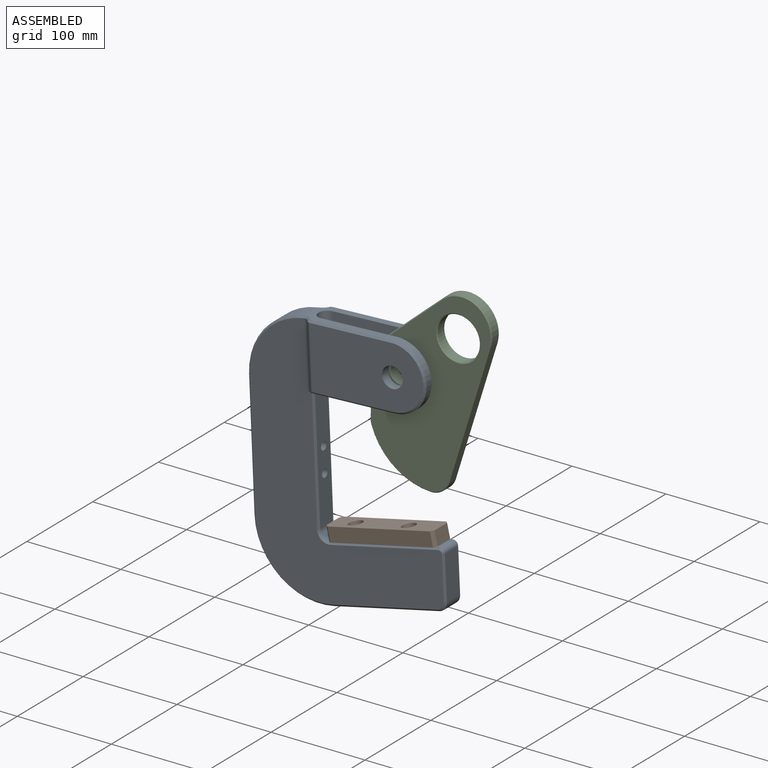
[diagram: assembled view]
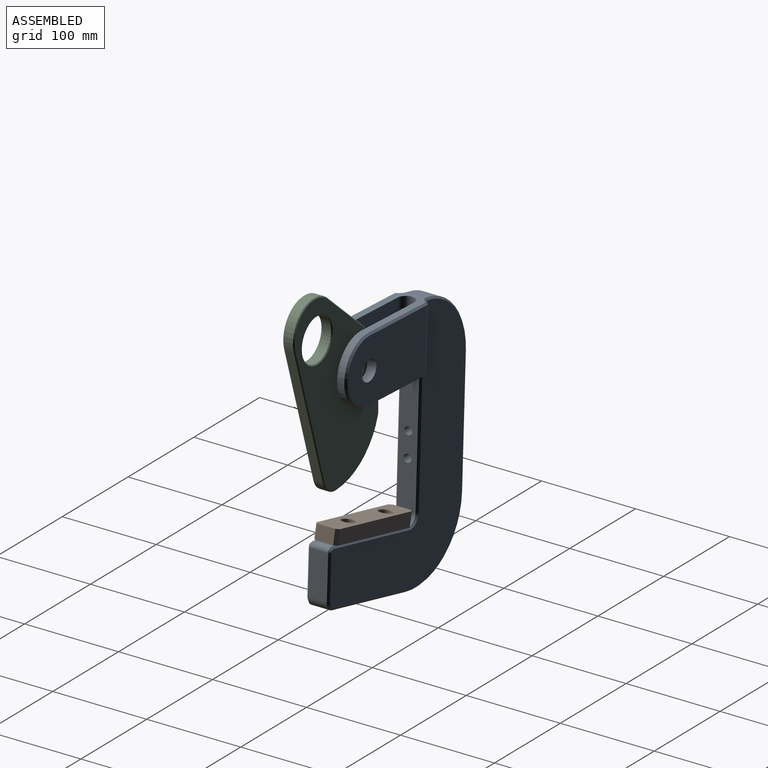
[diagram: assembled view, second angle]
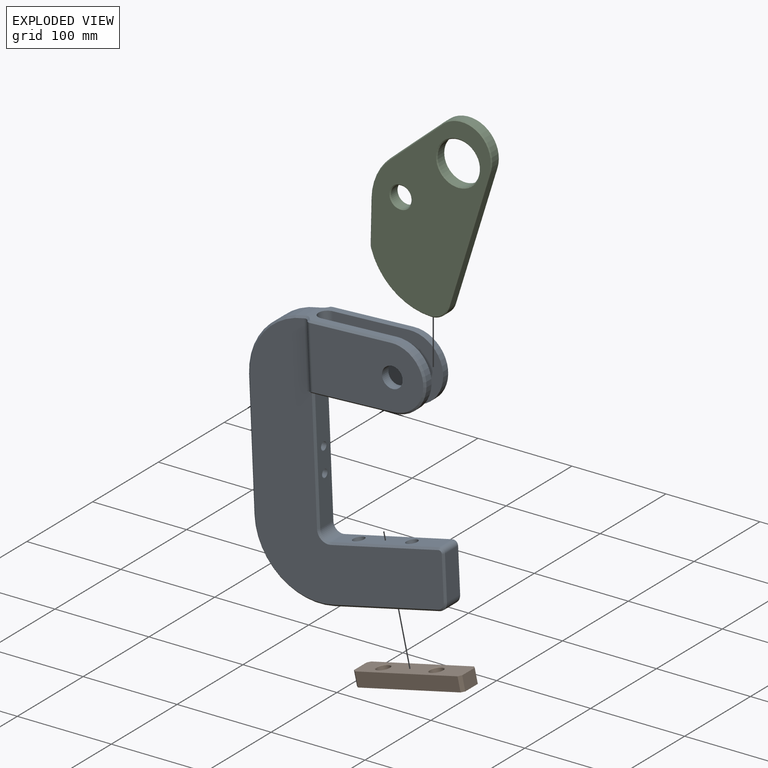
[diagram: exploded view]
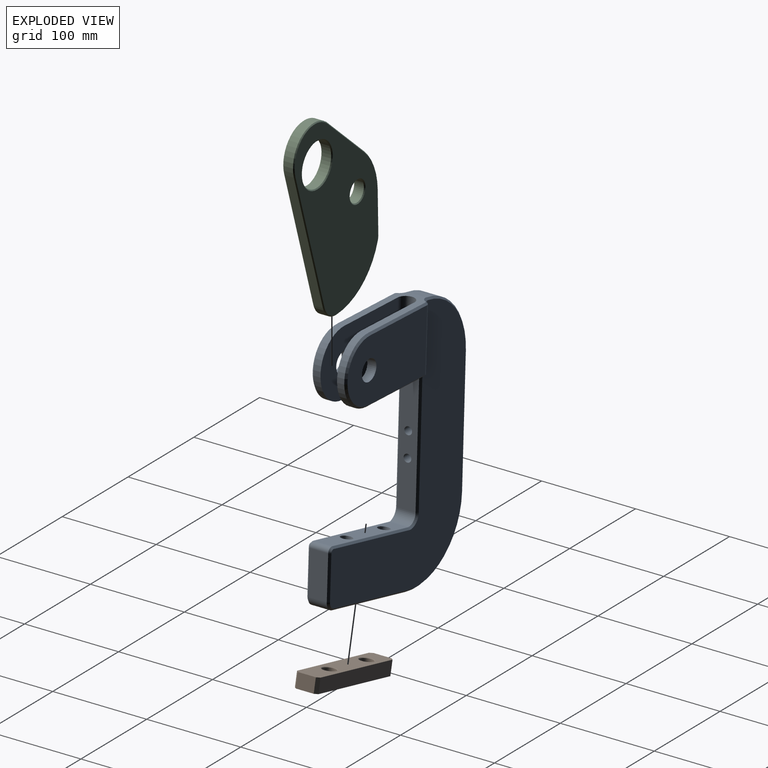
[diagram: exploded view, second angle]
ASSEMBLY  parts=3 mates=2
PART A: 141 faces, bbox 214.6x41x281.7 mm
  f0: cylinder r=4mm len=8.11mm, axis (1,0,0.04), area 45.1mm2, adj f30,f133,f138,f139,f140
  f1: cylinder r=4mm len=8.02mm, axis (1,0,0.04), area 4.5mm2, adj f2,f71,f139,f140
  f2: cylinder r=4mm len=8.05mm, axis (1,0,0.04), area 10mm2, adj f1,f3,f139,f140
  f3: cylinder r=4mm len=8.05mm, axis (1,0,0.04), area 10mm2, adj f2,f4,f139,f140
  f4: cylinder r=4mm len=8.05mm, axis (1,0,0.04), area 10mm2, adj f3,f5,f139,f140
  f5: cylinder r=4mm len=8.05mm, axis (1,0,0.04), area 10.1mm2, adj f4,f6,f139,f140
  f6: cylinder r=4mm len=8.05mm, axis (1,0,0.04), area 9.8mm2, adj f5,f7,f139,f140
  f7: cylinder r=4mm len=8.05mm, axis (1,0,0.04), area 10mm2, adj f6,f8,f139,f140
  f8: cylinder r=4mm len=8.05mm, axis (1,0,0.04), area 9.9mm2, adj f7,f9,f139,f140
  f9: cylinder r=4mm len=8.05mm, axis (1,0,0.04), area 10.1mm2, adj f8,f10,f139,f140
  f10: cylinder r=4mm len=8.05mm, axis (1,0,0.04), area 10mm2, adj f9,f11,f139,f140
  f11: cylinder r=4mm len=8.05mm, axis (1,0,0.04), area 10.1mm2, adj f10,f12,f139,f140
  f12: cylinder r=4mm len=8.05mm, axis (1,0,0.04), area 10.1mm2, adj f11,f13,f139,f140
  f13: cylinder r=4mm len=8.05mm, axis (1,0,0.04), area 10mm2, adj f12,f14,f139,f140
  f14: cylinder r=4mm len=8.05mm, axis (1,0,0.04), area 10mm2, adj f13,f15,f139,f140
  f15: cylinder r=4mm len=8.05mm, axis (1,0,0.04), area 10mm2, adj f14,f16,f139,f140
  f16: cylinder r=4mm len=8.05mm, axis (1,0,0.04), area 9.9mm2, adj f15,f17,f139,f140
  f17: cylinder r=4mm len=8.05mm, axis (1,0,0.04), area 10.1mm2, adj f16,f18,f139,f140
  f18: cylinder r=4mm len=8.05mm, axis (1,0,0.04), area 10mm2, adj f17,f19,f139,f140
  f19: cylinder r=4mm len=8.05mm, axis (1,0,0.04), area 10.1mm2, adj f18,f20,f139,f140
  f20: cylinder r=4mm len=8.05mm, axis (1,0,0.04), area 10mm2, adj f19,f21,f139,f140
  f21: cylinder r=4mm len=8.05mm, axis (1,0,0.04), area 10.1mm2, adj f20,f22,f139,f140
  f22: cylinder r=4mm len=8.05mm, axis (1,0,0.04), area 10mm2, adj f21,f23,f139,f140
  f23: cylinder r=4mm len=8.05mm, axis (1,0,0.04), area 10mm2, adj f22,f24,f139,f140
  f24: cylinder r=4mm len=8.05mm, axis (1,0,0.04), area 10.1mm2, adj f23,f25,f139,f140
  f25: cylinder r=4mm len=8.05mm, axis (1,0,0.04), area 10.2mm2, adj f24,f26,f139,f140
  f26: cylinder r=4mm len=8.05mm, axis (1,0,0.04), area 10mm2, adj f25,f27,f139,f140
  f27: cylinder r=4mm len=8.05mm, axis (1,0,0.04), area 10mm2, adj f26,f28,f139,f140
  f28: cylinder r=4mm len=8.05mm, axis (1,0,0.04), area 10.1mm2, adj f27,f29,f139,f140
  f29: cylinder r=4mm len=8.05mm, axis (1,0,0.04), area 10.1mm2, adj f28,f30,f139,f140
  f30: cylinder r=4mm len=8.05mm, axis (1,0,0.04), area 10mm2, adj f0,f29,f139,f140
  f31: cylinder r=4mm len=8.11mm, axis (1,0,0.04), area 45.1mm2, adj f61,f134,f135,f136,f137
  f32: cylinder r=4mm len=8.02mm, axis (1,0,0.04), area 4.5mm2, adj f33,f71,f136,f137
  f33: cylinder r=4mm len=8.05mm, axis (1,0,0.04), area 10.2mm2, adj f32,f34,f136,f137
  f34: cylinder r=4mm len=8.05mm, axis (1,0,0.04), area 10.1mm2, adj f33,f35,f136,f137
  f35: cylinder r=4mm len=8.05mm, axis (1,0,0.04), area 9.7mm2, adj f34,f36,f136,f137
  f36: cylinder r=4mm len=8.05mm, axis (1,0,0.04), area 10.1mm2, adj f35,f37,f136,f137
  f37: cylinder r=4mm len=8.05mm, axis (1,0,0.04), area 10mm2, adj f36,f38,f136,f137
  f38: cylinder r=4mm len=8.05mm, axis (1,0,0.04), area 10.1mm2, adj f37,f39,f136,f137
  f39: cylinder r=4mm len=8.05mm, axis (1,0,0.04), area 10.1mm2, adj f38,f40,f136,f137
  f40: cylinder r=4mm len=8.05mm, axis (1,0,0.04), area 10mm2, adj f39,f41,f136,f137
  f41: cylinder r=4mm len=8.05mm, axis (1,0,0.04), area 10.1mm2, adj f40,f42,f136,f137
  f42: cylinder r=4mm len=8.05mm, axis (1,0,0.04), area 10.1mm2, adj f41,f43,f136,f137
  f43: cylinder r=4mm len=8.05mm, axis (1,0,0.04), area 10mm2, adj f42,f44,f136,f137
  f44: cylinder r=4mm len=8.05mm, axis (1,0,0.04), area 10.2mm2, adj f43,f45,f136,f137
  f45: cylinder r=4mm len=8.05mm, axis (1,0,0.04), area 9.8mm2, adj f44,f46,f136,f137
  f46: cylinder r=4mm len=8.05mm, axis (1,0,0.04), area 9.8mm2, adj f45,f47,f136,f137
  f47: cylinder r=4mm len=8.05mm, axis (1,0,0.04), area 10mm2, adj f46,f48,f136,f137
  f48: cylinder r=4mm len=8.05mm, axis (1,0,0.04), area 10mm2, adj f47,f49,f136,f137
  f49: cylinder r=4mm len=8.05mm, axis (1,0,0.04), area 10mm2, adj f48,f50,f136,f137
  f50: cylinder r=4mm len=8.05mm, axis (1,0,0.04), area 10.1mm2, adj f49,f51,f136,f137
  f51: cylinder r=4mm len=8.05mm, axis (1,0,0.04), area 10mm2, adj f50,f52,f136,f137
  f52: cylinder r=4mm len=8.05mm, axis (1,0,0.04), area 10.1mm2, adj f51,f53,f136,f137
  f53: cylinder r=4mm len=8.05mm, axis (1,0,0.04), area 10mm2, adj f52,f54,f136,f137
  f54: cylinder r=4mm len=8.05mm, axis (1,0,0.04), area 10mm2, adj f53,f55,f136,f137
  f55: cylinder r=4mm len=8.05mm, axis (1,0,0.04), area 10.1mm2, adj f54,f56,f136,f137
  f56: cylinder r=4mm len=8.05mm, axis (1,0,0.04), area 10.2mm2, adj f55,f57,f136,f137
  f57: cylinder r=4mm len=8.05mm, axis (1,0,0.04), area 10mm2, adj f56,f58,f136,f137
  f58: cylinder r=4mm len=8.05mm, axis (1,0,0.04), area 10mm2, adj f57,f59,f136,f137
  f59: cylinder r=4mm len=8.05mm, axis (1,0,0.04), area 10mm2, adj f58,f60,f136,f137
  f60: cylinder r=4mm len=8.05mm, axis (1,0,0.04), area 10.1mm2, adj f59,f61,f136,f137
  f61: cylinder r=4mm len=8.05mm, axis (1,0,0.04), area 10.1mm2, adj f31,f60,f136,f137
  f62: plane 120.77x69.96mm, normal (0,-1,0), area 7028.6mm2, adj f81,f92,f111,f112,f113
  f63: plane 120.77x69.96mm, normal (0,1,0), area 7028.6mm2, adj f77,f93,f128,f129,f130
  f64: plane 111.71x24.99mm, normal (0.22,0,-0.98), area 2063.2mm2, adj f66,f70,f104,f121,f131,f132
  f65: cylinder r=10mm len=20mm, axis (0,1,0), area 348.6mm2, adj f69,f71,f99,f116
  f66: cylinder r=70mm len=85.21mm, axis (0,1,0), area 2442.6mm2, adj f64,f73,f105,f122
  f67: plane 46.52x20mm, normal (1,0,0.05), area 931.3mm2, adj f68,f70,f102,f119
  f68: cylinder r=5mm len=20mm, axis (0,1,0), area 174.5mm2, adj f67,f69,f101,f118
  f69: plane 114.48x25.6mm, normal (-0.22,0,0.98), area 2119.9mm2, adj f65,f68,f100,f117,f131,f132
  f70: cylinder r=10mm len=20mm, axis (0,1,0), area 279.4mm2, adj f64,f67,f103,f120
  f71: plane 122.14x20.28mm, normal (1,0,0.04), area 2330.5mm2, adj f1,f32,f65,f89,f98,f114,f115,f136
  f72: cylinder r=70mm len=73.17mm, axis (0,1,0), area 2223mm2, adj f73,f76,f80,f107,f108,f124,f125
  f73: plane 133.6x20mm, normal (-1,0,-0.04), area 2674.5mm2, adj f66,f72,f106,f123
  f74: plane 79.93x7.68mm, normal (0.05,0,-1), area 614.2mm2, adj f75,f82,f87,f130
  f75: cylinder r=35mm len=69.96mm, axis (0,1,0), area 844mm2, adj f74,f80,f82,f129
  f76: plane 89.92x16.5mm, normal (-0.05,0,1), area 703.9mm2, adj f72,f79,f83,f84,f109,f110,f111
  f77: cylinder r=11mm len=22mm, axis (0,1,0), area 668.7mm2, adj f63,f82
  f78: plane 79.93x7.68mm, normal (0.05,0,-1), area 614.2mm2, adj f79,f83,f88,f113
  f79: cylinder r=35mm len=69.96mm, axis (0,1,0), area 844mm2, adj f76,f78,f83,f112
  f80: plane 89.92x16.5mm, normal (-0.05,0,1), area 703.9mm2, adj f72,f75,f82,f84,f126,f127,f128
  f81: cylinder r=11mm len=22mm, axis (0,1,0), area 668.7mm2, adj f62,f83
  f82: plane 117.73x73.67mm, normal (0,-1,0), area 7227.7mm2, adj f74,f75,f77,f80,f84,f87
  f83: plane 117.73x73.67mm, normal (0,1,0), area 7227.7mm2, adj f76,f78,f79,f81,f84,f88
  f84: cylinder r=8.82mm len=70.28mm, axis (-0.05,0,1), area 1932.8mm2, adj f76,f80,f82,f83,f87,f88,f95
  f85: plane 268.86x206.57mm, normal (0,-1,0), area 23071.6mm2, adj f90,f94,f97,f98,f99,f100,f101,f102
  f86: plane 268.86x206.57mm, normal (0,1,0), area 23081.8mm2, adj f87,f91,f114,f115,f116,f117,f118,f119
  f87: plane 17.05x11.31mm, normal (0,0,-1), area 97.3mm2, adj f74,f82,f84,f86,f91,f93,f95,f114
  f88: plane 12.13x11.29mm, normal (0,0,-1), area 85.6mm2, adj f78,f83,f84,f90,f92,f94,f95,f96
  f89: plane 20.04x8.37mm, normal (1,0,0.05), area 167.5mm2, adj f71,f95,f97,f114
  f90: cylinder r=7mm len=69.43mm, axis (0.05,0,-1), area 520.5mm2, adj f85,f88,f92,f94,f108,f109
  f91: cylinder r=7mm len=67.72mm, axis (0.05,0,-1), area 515mm2, adj f86,f87,f93,f125,f126
  f92: cylinder r=5mm len=67.67mm, axis (0.05,0,-1), area 366.5mm2, adj f62,f88,f90,f110,f113
  f93: cylinder r=5mm len=67.67mm, axis (0.05,0,-1), area 366.5mm2, adj f63,f87,f91,f127,f130
  f94: plane 5.97x2.98mm, normal (0,-0.71,-0.71), area 4.7mm2, adj f85,f88,f90,f96
  f95: plane 24.02x6.09mm, normal (0.72,0,-0.69), area 32.3mm2, adj f84,f87,f88,f89,f96,f114
  f96: bspline ~4x4mm, area 10.6mm2, adj f88,f94,f95,f97
  f97: plane 8.55x2.4mm, normal (0.71,-0.71,0.03), area 23.9mm2, adj f85,f89,f96,f98
  f98: plane 121.95x7.22mm, normal (0.71,-0.71,0.03), area 345mm2, adj f71,f85,f97,f99
  f99: cone r=12mm half-angle=45deg, axis (0,-1,0), area 54.2mm2, adj f65,f85,f98,f100
  f100: plane 114.91x27.55mm, normal (-0.15,-0.71,0.69), area 331.8mm2, adj f69,f85,f99,f101
  f101: cone r=5mm half-angle=45deg, axis (0,1,0), area 19.7mm2, adj f68,f85,f100,f102
  f102: plane 46.61x4.16mm, normal (0.71,-0.71,0.03), area 131.7mm2, adj f67,f85,f101,f103
  f103: cone r=10mm half-angle=45deg, axis (0,1,0), area 35.6mm2, adj f70,f85,f102,f104
  f104: plane 112.15x26.94mm, normal (0.15,-0.71,-0.69), area 323.8mm2, adj f64,f85,f103,f105
  f105: cone r=70mm half-angle=45deg, axis (0,1,0), area 340.5mm2, adj f66,f85,f104,f106
  f106: plane 133.69x7.76mm, normal (-0.71,-0.71,-0.03), area 378.2mm2, adj f73,f85,f105,f107
  f107: cone r=70mm half-angle=45deg, axis (0,1,0), area 286.5mm2, adj f72,f85,f106,f108
  f108: bspline ~7.16x4.6mm, area 20.3mm2, adj f72,f90,f107,f109
  f109: cone r=9mm half-angle=45deg, axis (-0.05,0,1), area 4.7mm2, adj f76,f90,f108,f110
  f110: cone r=3mm half-angle=45deg, axis (0.05,0,-1), area 12.4mm2, adj f76,f92,f109,f111
  f111: plane 86.34x6mm, normal (-0.03,-0.71,0.71), area 244.2mm2, adj f62,f76,f110,f112
  f112: cone r=33mm half-angle=45deg, axis (0,1,0), area 302.1mm2, adj f62,f79,f111,f113
  f113: plane 90.61x6.44mm, normal (0.03,-0.71,-0.71), area 248.7mm2, adj f62,f78,f88,f92,f112
  f114: plane 11.54x4.06mm, normal (0.71,0.71,0.03), area 35.4mm2, adj f71,f86,f87,f89,f95,f115
  f115: plane 120.94x7.18mm, normal (0.71,0.71,0.03), area 342.1mm2, adj f71,f86,f114,f116
  f116: cone r=10mm half-angle=45deg, axis (0,1,0), area 54.2mm2, adj f65,f86,f115,f117
  f117: plane 114.91x27.55mm, normal (-0.15,0.71,0.69), area 331.8mm2, adj f69,f86,f116,f118
  f118: cone r=3mm half-angle=45deg, axis (0,-1,0), area 19.7mm2, adj f68,f86,f117,f119
  f119: plane 46.61x4.16mm, normal (0.71,0.71,0.03), area 131.7mm2, adj f67,f86,f118,f120
  f120: cone r=8mm half-angle=45deg, axis (0,-1,0), area 35.6mm2, adj f70,f86,f119,f121
  f121: plane 112.15x26.94mm, normal (0.15,0.71,-0.69), area 323.8mm2, adj f64,f86,f120,f122
  f122: cone r=68mm half-angle=45deg, axis (0,-1,0), area 340.5mm2, adj f66,f86,f121,f123
  f123: plane 133.69x7.76mm, normal (-0.71,0.71,-0.03), area 378.2mm2, adj f73,f86,f122,f124
  f124: cone r=68mm half-angle=45deg, axis (0,-1,0), area 286.5mm2, adj f72,f86,f123,f125
  f125: bspline ~7.16x4.6mm, area 20.3mm2, adj f72,f91,f124,f126
  f126: cone r=9mm half-angle=45deg, axis (-0.05,0,1), area 4.7mm2, adj f80,f91,f125,f127
  f127: cone r=3mm half-angle=45deg, axis (0.05,0,-1), area 12.4mm2, adj f80,f93,f126,f128
  f128: plane 86.34x6mm, normal (-0.03,0.71,0.71), area 244.2mm2, adj f63,f80,f127,f129
  f129: cone r=35mm half-angle=45deg, axis (0,-1,0), area 302.1mm2, adj f63,f75,f128,f130
  f130: plane 90.61x6.44mm, normal (0.03,0.71,-0.71), area 248.7mm2, adj f63,f74,f87,f93,f129
  f131: cylinder r=6mm len=61.18mm, axis (0.22,0,-0.98), area 2262.2mm2, adj f64,f69
  f132: cylinder r=6mm len=61.17mm, axis (0.22,0,-0.98), area 2262mm2, adj f64,f69
  f133: plane 8x7.99mm, normal (1,0,0.04), area 50.3mm2, adj f0
  f134: plane 8x7.99mm, normal (1,0,0.04), area 50.3mm2, adj f31
  f135: plane 0.61x0.52mm, normal (0,0.05,1), area 0.2mm2, adj f31,f136,f137
  f136: bspline ~31.27x9.66mm, area 497.7mm2, adj f31,f32,f33,f34,f35,f36,f37,f38
  f137: bspline ~31.28x11.69mm, area 489.5mm2, adj f31,f32,f33,f34,f35,f36,f37,f38
  f138: plane 0.6x0.52mm, normal (0,0.01,1), area 0.2mm2, adj f0,f139,f140
  f139: bspline ~31.27x9.66mm, area 495.7mm2, adj f0,f1,f2,f3,f4,f5,f6,f7
  f140: bspline ~31.28x11.69mm, area 489.5mm2, adj f0,f1,f2,f3,f4,f5,f6,f7
PART B: 20 faces, bbox 118x15x25 mm
  f0: cylinder r=4.5mm len=9mm, axis (0,1,0), area 155.5mm2, adj f7,f16
  f1: cylinder r=4.5mm len=9mm, axis (0,1,0), area 155.5mm2, adj f7,f17
  f2: plane 112x15mm, normal (0,0,1), area 1680mm2, adj f6,f7,f8,f11
  f3: plane 19x15mm, normal (-1,0,0), area 285mm2, adj f6,f7,f10,f11
  f4: plane 112x15mm, normal (0,0,-1), area 1680mm2, adj f6,f7,f9,f10
  f5: plane 19x15mm, normal (1,0,0), area 285mm2, adj f6,f7,f8,f9
  f6: plane 118x25mm, normal (0,-1,0), area 2578.6mm2, adj f2,f3,f4,f5,f8,f9,f10,f11
  f7: plane 118x25mm, normal (0,1,0), area 2804.8mm2, adj f0,f1,f2,f3,f4,f5,f8,f9
  f8: plane 15x3mm, normal (0.71,0,0.71), area 63.6mm2, adj f2,f5,f6,f7
  f9: plane 15x3mm, normal (0.71,0,-0.71), area 63.6mm2, adj f4,f5,f6,f7
  f10: plane 15x3mm, normal (-0.71,0,-0.71), area 63.6mm2, adj f3,f4,f6,f7
  f11: plane 15x3mm, normal (-0.71,0,0.71), area 63.6mm2, adj f2,f3,f6,f7
  f12: cylinder r=7mm len=14mm, axis (0,-1,0), area 373.8mm2, adj f13,f18
  f13: plane 14x14mm, normal (0,-1,0), area 75.4mm2, adj f12,f16
  f14: cylinder r=7mm len=14mm, axis (0,-1,0), area 373.8mm2, adj f15,f19
  f15: plane 14x14mm, normal (0,-1,0), area 75.4mm2, adj f14,f17
  f16: cone r=4.5mm half-angle=45deg, axis (0,-1,0), area 21.1mm2, adj f0,f13
  f17: cone r=4.5mm half-angle=45deg, axis (0,-1,0), area 21.1mm2, adj f1,f15
  f18: cone r=7mm half-angle=45deg, axis (0,-1,0), area 32.2mm2, adj f6,f12
  f19: cone r=7mm half-angle=45deg, axis (0,-1,0), area 32.2mm2, adj f6,f14
PART C: 32 faces, bbox 183.4x12x149.2 mm
  f0: plane 70.63x10mm, normal (-0.08,0,1), area 708.5mm2, adj f1,f9,f18,f25
  f1: cylinder r=60mm len=42.65mm, axis (0,1,0), area 499mm2, adj f0,f2,f16,f23
  f2: plane 35.05x27.17mm, normal (-0.79,0,0.61), area 443.5mm2, adj f1,f3,f14,f22
  f3: cylinder r=15mm len=10mm, axis (0,1,0), area 48.6mm2, adj f2,f4,f12,f24
  f4: cylinder r=68.88mm len=76.42mm, axis (0,1,0), area 847.8mm2, adj f3,f5,f13,f26
  f5: cylinder r=20mm len=24.31mm, axis (0,1,0), area 261.3mm2, adj f4,f6,f15,f28
  f6: plane 120.24x87.95mm, normal (0.59,0,-0.81), area 1489.7mm2, adj f5,f9,f17,f29
  f7: cylinder r=11mm len=22mm, axis (0,1,0), area 691.2mm2, adj f21,f30
  f8: cylinder r=22.5mm len=45mm, axis (0,1,0), area 1413.7mm2, adj f20,f31
  f9: cylinder r=31.76mm len=57.4mm, axis (0,1,0), area 847.8mm2, adj f0,f6,f19,f27
  f10: plane 181.39x147.2mm, normal (0,-1,0), area 14314.3mm2, adj f12,f13,f14,f15,f16,f17,f18,f19
  f11: plane 181.39x147.2mm, normal (0,1,0), area 14314.3mm2, adj f22,f23,f24,f25,f26,f27,f28,f29
  f12: cone r=14mm half-angle=45deg, axis (0,1,0), area 6.7mm2, adj f3,f10,f13,f14
  f13: cone r=67.88mm half-angle=45deg, axis (0,1,0), area 119mm2, adj f4,f10,f12,f15
  f14: plane 35.67x27.96mm, normal (-0.56,-0.71,0.43), area 62.7mm2, adj f2,f10,f12,f16
  f15: cone r=19mm half-angle=45deg, axis (0,1,0), area 36mm2, adj f5,f10,f13,f17
  f16: cone r=59mm half-angle=45deg, axis (0,1,0), area 70mm2, adj f1,f10,f14,f18
  f17: plane 120.83x88.76mm, normal (0.42,-0.71,-0.57), area 210.7mm2, adj f6,f10,f15,f19
  f18: plane 70.75x6.63mm, normal (-0.06,-0.71,0.7), area 100.2mm2, adj f0,f10,f16,f19
  f19: cone r=30.76mm half-angle=45deg, axis (0,1,0), area 118mm2, adj f9,f10,f17,f18
  f20: cone r=23.5mm half-angle=45deg, axis (0,-1,0), area 204.4mm2, adj f8,f10
  f21: cone r=12mm half-angle=45deg, axis (0,-1,0), area 102.2mm2, adj f7,f10
  f22: plane 35.67x27.96mm, normal (-0.56,0.71,0.43), area 62.7mm2, adj f2,f11,f23,f24
  f23: cone r=60mm half-angle=45deg, axis (0,-1,0), area 70mm2, adj f1,f11,f22,f25
  f24: cone r=15mm half-angle=45deg, axis (0,-1,0), area 6.7mm2, adj f3,f11,f22,f26
  f25: plane 70.75x6.63mm, normal (-0.06,0.71,0.7), area 100.2mm2, adj f0,f11,f23,f27
  f26: cone r=68.88mm half-angle=45deg, axis (0,-1,0), area 119mm2, adj f4,f11,f24,f28
  f27: cone r=31.76mm half-angle=45deg, axis (0,-1,0), area 118mm2, adj f9,f11,f25,f29
  f28: cone r=20mm half-angle=45deg, axis (0,-1,0), area 36mm2, adj f5,f11,f26,f29
  f29: plane 120.83x88.76mm, normal (0.42,0.71,-0.57), area 210.7mm2, adj f6,f11,f27,f28
  f30: cone r=11mm half-angle=45deg, axis (0,1,0), area 102.2mm2, adj f7,f11
  f31: cone r=22.5mm half-angle=45deg, axis (0,1,0), area 204.4mm2, adj f8,f11
PLACE A t=(5.49,237.64,56.89)mm fixed
PLACE B rot(axis=(-0.99,-0.11,-0.11),90.7deg) t=(27.3,229.65,-10.37)mm
PLACE C rot(axis=(0,-1,0),36.6deg) t=(100.93,225.32,149.58)mm
MATE fastened A.f131 <-> B.f1  axis (0.22,0,-0.98) through (9.76,219.14,-14.29)mm
MATE revolute A.f75 <-> C.f7  axis (0,1,0) through (58.51,210.32,160.76)mm
